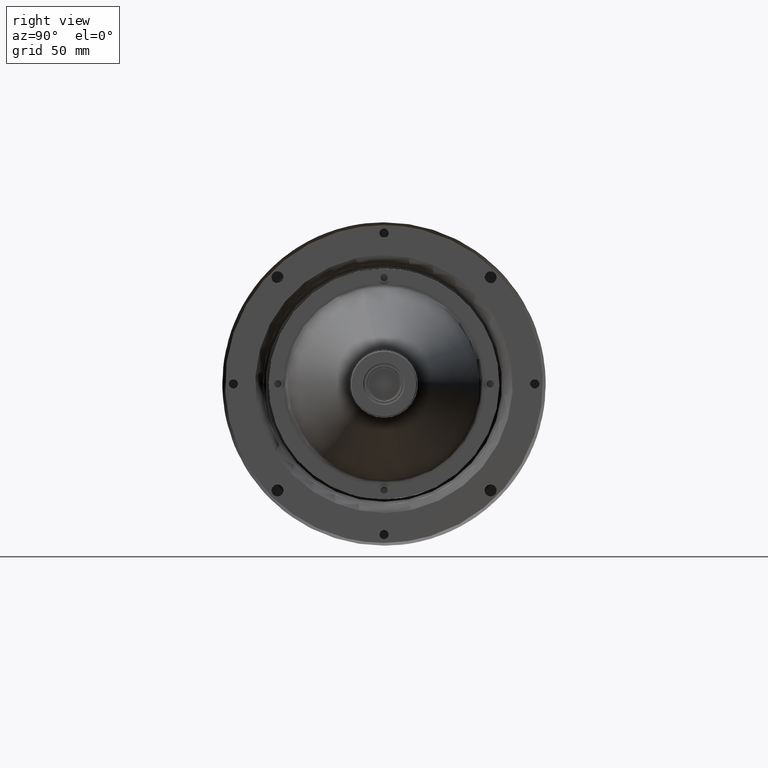
[diagram: clean part render]
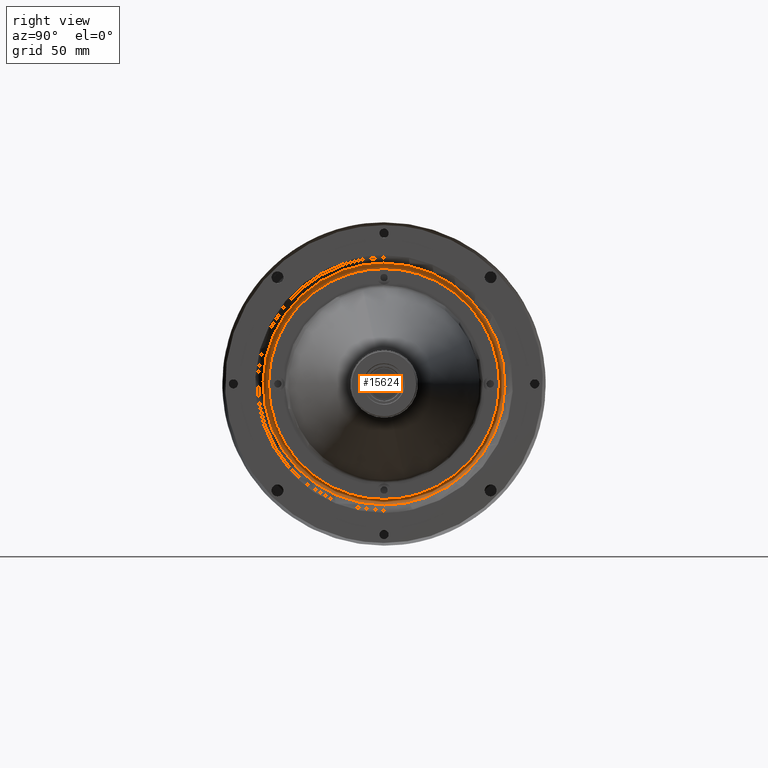
[diagram: same view with one face highlighted and labeled with its STEP entity id]
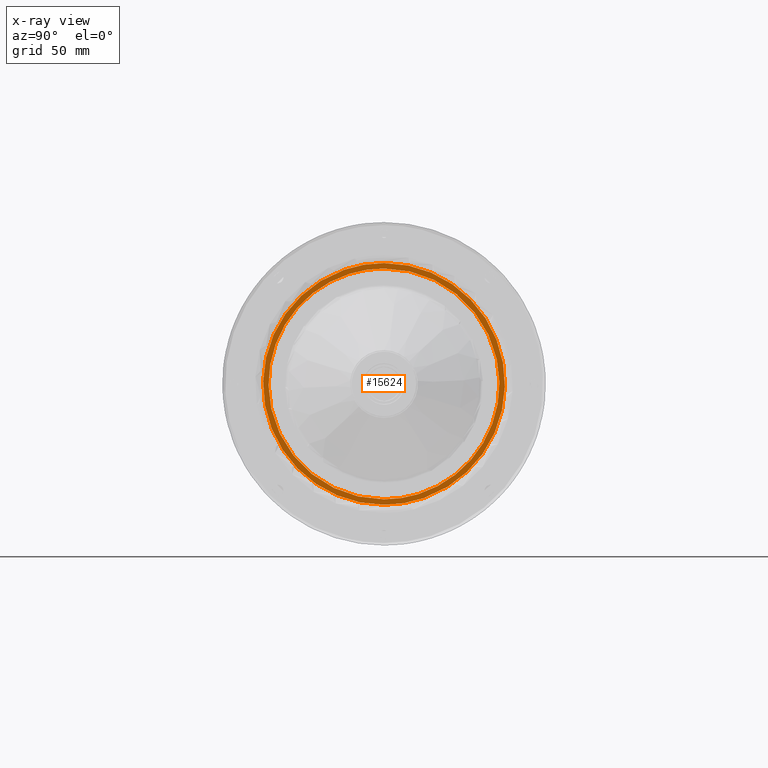
[diagram: x-ray of the same camera — body ghosted, the highlighted face saturated]
A machine part, right view. The second image highlights one B-rep face of the part: STEP entity #15624.
The next image is the same camera in x-ray: the body ghosted, the highlighted face saturated — about 0% of this face is hidden behind the body in this view.
In plain terms, the highlighted planar face has unit normal (1, 0, 0).
Its self-contained STEP definition (entity closure, byte-faithful):
#52 = CARTESIAN_POINT ( 'NONE',  ( 161.0389117160000296, -60.98239252534106924, -84.57051480034246538 ) ) ;
#238 = CARTESIAN_POINT ( 'NONE',  ( 161.0389117160000296, -51.80303036488530211, -104.0800218913116453 ) ) ;
#330 = CARTESIAN_POINT ( 'NONE',  ( 161.0389117160000296, -35.42952243443664173, -16.12697816330168621 ) ) ;
#408 = CARTESIAN_POINT ( 'NONE',  ( 161.0389117160000296, 66.84382141800000454, -68.22315387150000277 ) ) ;
#454 = CARTESIAN_POINT ( 'NONE',  ( 161.0389117160000580, -65.99996388334150765, -63.88916545783057899 ) ) ;
#508 = CARTESIAN_POINT ( 'NONE',  ( 161.0389117160000296, -52.95017771342435253, -34.08307390523878411 ) ) ;
#598 = CARTESIAN_POINT ( 'NONE',  ( 161.0389117160000296, -14.31058401001184777, -6.867920689104522580 ) ) ;
#823 = CARTESIAN_POINT ( 'NONE',  ( 161.0389117161174966, 8.637371628181590292E-15, -134.2231538719059927 ) ) ;
#927 = VERTEX_POINT ( 'NONE', #7007 ) ;
#962 = ORIENTED_EDGE ( 'NONE', *, *, #16821, .T. ) ;
#1058 = CARTESIAN_POINT ( 'NONE',  ( 161.0389117160000296, 4.117028644093690737, -5.354947150696134806 ) ) ;
#1087 = CARTESIAN_POINT ( 'NONE',  ( 161.0389117160000580, 53.50155055510528967, -101.4925453806690427 ) ) ;
#1152 = CARTESIAN_POINT ( 'NONE',  ( 161.0389117160000012, 46.01000154932732045, -25.13777346086834896 ) ) ;
#1180 = CARTESIAN_POINT ( 'NONE',  ( 161.0389117160000296, 14.31058400981928003, -129.5783870539603413 ) ) ;
#1204 = B_SPLINE_CURVE_WITH_KNOTS ( 'NONE', 3,
 ( #2042, #11738, #6241, #7368, #8848, #3257, #17417, #8760, #1772, #7721, #10252, #8938, #1952, #13233, #13414, #10510, #5974, #454, #4662, #12008, #11647, #4933, #17328, #4577, #6152, #10336, #15924, #16280, #3347, #3172, #9024, #7454, #14721, #13142 ),
 .UNSPECIFIED., .F., .F.,
 ( 4, 2, 2, 2, 2, 2, 2, 2, 2, 2, 2, 2, 2, 2, 2, 2, 4 ),
 ( 0.000000000000000000, 0.06250000000000001388, 0.1250000000000000000, 0.1874999999999999722, 0.2499999999999999722, 0.3124999999999999445, 0.3749999999999999445, 0.4375000000000000000, 0.5000000000000000000, 0.5625000000000000000, 0.6250000000000000000, 0.6875000000000000000, 0.7500000000000000000, 0.8125000000000001110, 0.8750000000000001110, 0.9375000000000001110, 1.000000000000000000 ),
 .UNSPECIFIED. ) ;
#1248 = CARTESIAN_POINT ( 'NONE',  ( 161.0389117160000296, 31.95354988486137771, -13.91080835874686983 ) ) ;
#1266 = CARTESIAN_POINT ( 'NONE',  ( 161.0389117160000296, -38.44023301246599544, -118.3076050973635489 ) ) ;
#1361 = CARTESIAN_POINT ( 'NONE',  ( 161.0389117160000296, -5.146124663726901360, -131.0153652367820882 ) ) ;
#1369 = CARTESIAN_POINT ( 'NONE',  ( 161.0389117160000296, 40.79528611295974372, -116.3092851228584834 ) ) ;
#1454 = CARTESIAN_POINT ( 'NONE',  ( 161.0389117160000296, -56.04735366171711775, -97.01121313402066448 ) ) ;
#1461 = CARTESIAN_POINT ( 'NONE',  ( 161.0389117160000296, 60.63520505313289277, -85.54072083987173869 ) ) ;
#1551 = CARTESIAN_POINT ( 'NONE',  ( 161.0389117160000580, -58.40167514031017504, -44.59047963869099362 ) ) ;
#1649 = CARTESIAN_POINT ( 'NONE',  ( 161.0389117160000296, -58.96559584998212955, -46.03438386248579661 ) ) ;
#1738 = CARTESIAN_POINT ( 'NONE',  ( 161.0389117160000296, -35.85686119820013573, -16.42011475253995556 ) ) ;
#1772 = CARTESIAN_POINT ( 'NONE',  ( 161.0389117160000296, -43.60450174787632704, -117.9567936733250093 ) ) ;
#1829 = CARTESIAN_POINT ( 'NONE',  ( 161.0389117160000296, -12.79677830549330864, -6.534640802266791226 ) ) ;
#1952 = CARTESIAN_POINT ( 'NONE',  ( 161.0389117160000296, -59.31753695109321711, -97.48435741853538161 ) ) ;
#1969 = ORIENTED_EDGE ( 'NONE', *, *, #10152, .F. ) ;
#2042 = CARTESIAN_POINT ( 'NONE',  ( 161.0389117161174966, 8.637371628181590292E-15, -134.2231538719059927 ) ) ;
#2047 = CARTESIAN_POINT ( 'NONE',  ( 161.0389117160000296, 21.25304157746991862, -130.8577054897409653 ) ) ;
#2102 = CARTESIAN_POINT ( 'NONE',  ( 161.0389117160000296, 0.000000000000000000, -5.223153871631780021 ) ) ;
#2230 = CARTESIAN_POINT ( 'NONE',  ( 161.0389117159999728, 40.27116908895199288, -15.75400319360399948 ) ) ;
#2468 = CARTESIAN_POINT ( 'NONE',  ( 161.0389117160000296, 51.20881227910294342, -31.52241119441567108 ) ) ;
#2559 = CARTESIAN_POINT ( 'NONE',  ( 161.0389117160000296, 22.18922346975865878, -9.257697618724758826 ) ) ;
#2671 = CARTESIAN_POINT ( 'NONE',  ( 161.0389117160000296, -17.31849492640142074, -128.8579819026951725 ) ) ;
#2678 = CARTESIAN_POINT ( 'NONE',  ( 161.0389117160000296, 6.689558338009458538, -130.8694854632589681 ) ) ;
#2743 = CARTESIAN_POINT ( 'NONE',  ( 161.0389117160000296, 63.00003590390296182, -72.35952502023621946 ) ) ;
#2764 = CARTESIAN_POINT ( 'NONE',  ( 161.0389117160000296, -56.74255675229115070, -95.63017132770922046 ) ) ;
#2772 = CARTESIAN_POINT ( 'NONE',  ( 161.0389117160000296, 37.95445731583696869, -118.5259865618847215 ) ) ;
#2859 = CARTESIAN_POINT ( 'NONE',  ( 161.0389117160000580, -62.99996409550111309, -72.35952501991584995 ) ) ;
#2869 = CARTESIAN_POINT ( 'NONE',  ( 161.0389117160000296, 62.59636127161986963, -76.45715092787369827 ) ) ;
#2952 = CARTESIAN_POINT ( 'NONE',  ( 161.0389117160000296, -59.50467886748198509, -47.48420558772223643 ) ) ;
#3035 = FACE_OUTER_BOUND ( 'NONE', #8152, .T. ) ;
#3048 = CARTESIAN_POINT ( 'NONE',  ( 161.0389117160000012, -52.09616399811719845, -103.6526886868224011 ) ) ;
#3138 = CARTESIAN_POINT ( 'NONE',  ( 161.0389117160000296, -27.86734328266357608, -11.71233382770468445 ) ) ;
#3172 = CARTESIAN_POINT ( 'NONE',  ( 161.0389117160000012, -21.25300952490135487, -5.588592531348005821 ) ) ;
#3223 = CARTESIAN_POINT ( 'NONE',  ( 161.0389117160000580, -53.50155055528251324, -34.95376236261831338 ) ) ;
#3257 = CARTESIAN_POINT ( 'NONE',  ( 161.0389117160000012, -29.26114636558689241, -127.5406398775946428 ) ) ;
#3313 = CARTESIAN_POINT ( 'NONE',  ( 161.0389117160000296, -11.27838136486966114, -6.232574490354038765 ) ) ;
#3347 = CARTESIAN_POINT ( 'NONE',  ( 161.0389117160000296, -29.26120354723122219, -8.905616920936404668 ) ) ;
#3442 = CARTESIAN_POINT ( 'NONE',  ( 161.0389117160000296, 29.26117149471078349, -127.5407005453527916 ) ) ;
#3726 = CARTESIAN_POINT ( 'NONE',  ( 161.0389117160000012, 63.88628361223909735, -85.34978806856874201 ) ) ;
#3868 = CARTESIAN_POINT ( 'NONE',  ( 161.0389117160000296, 14.31953092777910896, -6.837537078507872401 ) ) ;
#3898 = CARTESIAN_POINT ( 'NONE',  ( 161.0389117160000296, 8.223252223538016992, -130.6864482731011492 ) ) ;
#4055 = CARTESIAN_POINT ( 'NONE',  ( 161.0389117160000580, 57.38622727865502071, -42.22145965940867285 ) ) ;
#4082 = CARTESIAN_POINT ( 'NONE',  ( 161.0389117160000296, 7.200510305561976132, -130.8127300409256577 ) ) ;
#4147 = CARTESIAN_POINT ( 'NONE',  ( 161.0389117160000296, 8.223583323597393857, -5.753521022522209094 ) ) ;
#4263 = CARTESIAN_POINT ( 'NONE',  ( 161.0389117160000580, -62.59643541217737805, -76.45714591660612314 ) ) ;
#4359 = CARTESIAN_POINT ( 'NONE',  ( 161.0389117160000296, -61.38594031726498912, -53.90413766900750403 ) ) ;
#4452 = CARTESIAN_POINT ( 'NONE',  ( 161.0389117160000012, -20.73965030033334855, -127.7275920955544279 ) ) ;
#4577 = CARTESIAN_POINT ( 'NONE',  ( 161.0389117160000296, -52.46912942916018352, -27.95195889178084059 ) ) ;
#4662 = CARTESIAN_POINT ( 'NONE',  ( 161.0389117160000296, -65.57738312438897310, -59.59789761455478185 ) ) ;
#4718 = CARTESIAN_POINT ( 'NONE',  ( 161.0389117160000296, -40.79528611323765119, -20.13702262035069879 ) ) ;
#4848 = CARTESIAN_POINT ( 'NONE',  ( 161.0389117160000296, 40.27120557181505944, -120.6923591488661032 ) ) ;
#4900 = CARTESIAN_POINT ( 'NONE',  ( 161.0389117160000012, -43.08536593770156742, -22.21313846723916541 ) ) ;
#4933 = CARTESIAN_POINT ( 'NONE',  ( 161.0389117160000580, -59.31747021626298988, -38.96197796721411777 ) ) ;
#4937 = CARTESIAN_POINT ( 'NONE',  ( 161.0389117160000296, 66.00003283299430734, -63.88919879122316559 ) ) ;
#4985 = CARTESIAN_POINT ( 'NONE',  ( 161.0389117160000296, -19.28884145850024368, -8.185978338492898132 ) ) ;
#5120 = CARTESIAN_POINT ( 'NONE',  ( 161.0389117160000296, 8.625288309192741920, -2.645780470786863514 ) ) ;
#5207 = CARTESIAN_POINT ( 'NONE',  ( 161.0389117160785020, 4.041334437185214648E-15, -2.223153871939699933 ) ) ;
#5290 = CARTESIAN_POINT ( 'NONE',  ( 161.0389117160000296, 0.000000000000000000, -131.2231538713679981 ) ) ;
#5383 = CARTESIAN_POINT ( 'NONE',  ( 161.0389117160000296, 58.40167514031064400, -91.85582810429200151 ) ) ;
#5450 = CARTESIAN_POINT ( 'NONE',  ( 161.0389117160000580, 20.73965030060878334, -8.718715647435026028 ) ) ;
#5542 = CARTESIAN_POINT ( 'NONE',  ( 161.0389117160000296, 62.59643541228213337, -59.98916182675870346 ) ) ;
#5561 = CARTESIAN_POINT ( 'NONE',  ( 161.0389117160000296, 0.000000000000000000, -131.2231538713679981 ) ) ;
#5569 = CARTESIAN_POINT ( 'NONE',  ( 161.0389117160000296, 13.30340412801762540, -129.8044546036706208 ) ) ;
#5662 = CARTESIAN_POINT ( 'NONE',  ( 161.0389117160000296, 19.28884145810087958, -128.2603294046413396 ) ) ;
#5756 = CARTESIAN_POINT ( 'NONE',  ( 161.0389117160000580, -27.87770803636277250, -124.7570605306330407 ) ) ;
#5849 = CARTESIAN_POINT ( 'NONE',  ( 161.0389117160000296, -5.662212559952839008, -130.9708359649554836 ) ) ;
#5939 = CARTESIAN_POINT ( 'NONE',  ( 161.0389117160000296, -55.07452444200596631, -37.61509197332671306 ) ) ;
#5974 = CARTESIAN_POINT ( 'NONE',  ( 161.0389117160000296, -66.00003611648766366, -72.55714228583603642 ) ) ;
#6031 = CARTESIAN_POINT ( 'NONE',  ( 161.0389117160000296, -26.00437275133747761, -10.83118868537321511 ) ) ;
#6152 = CARTESIAN_POINT ( 'NONE',  ( 161.0389117160000296, -49.73366569340016952, -24.61867337225667285 ) ) ;
#6241 = CARTESIAN_POINT ( 'NONE',  ( 161.0389117160000296, -8.625288308835219908, -133.8005272729292301 ) ) ;
#6245 = CARTESIAN_POINT ( 'NONE',  ( 161.0389117160000296, 4.333790024860001644, -2.223153871879407717 ) ) ;
#6299 = CARTESIAN_POINT ( 'NONE',  ( 161.0389117160000296, -9.754745778685798285, -5.968056065147904654 ) ) ;
#6340 = CARTESIAN_POINT ( 'NONE',  ( 161.0389117160000296, 57.28478354647121051, -35.15908868439235135 ) ) ;
#6443 = EDGE_CURVE ( 'NONE', #15229, #18436, #1204, .T. ) ;
#6520 = CARTESIAN_POINT ( 'NONE',  ( 161.0389117160000296, 17.12663419692927036, -4.336870259730345012 ) ) ;
#6664 = CARTESIAN_POINT ( 'NONE',  ( 161.0389117160000296, 0.000000000000000000, -5.223153871631780021 ) ) ;
#6754 = CARTESIAN_POINT ( 'NONE',  ( 161.0389117160000296, 54.58823739487295512, -36.70538624668693473 ) ) ;
#6780 = CARTESIAN_POINT ( 'NONE',  ( 161.0389117160000012, 15.81577557825788993, -129.2211192873852212 ) ) ;
#6843 = CARTESIAN_POINT ( 'NONE',  ( 161.0389117160000296, 26.01449810599160273, -10.80797410920003188 ) ) ;
#6846 = B_SPLINE_CURVE_WITH_KNOTS ( 'NONE', 3,
 ( #6664, #8332, #13835, #1058, #15406, #18023, #7033, #4147, #10936, #9632, #3868, #15317, #5450, #2559, #14022, #16616, #6843, #16899, #11034, #1248, #8237, #15227, #6940, #12617, #9820, #1152, #9543, #12526, #2468, #8150, #16804, #8425, #6754, #12433, #18111, #4055, #13925, #11225, #18295, #9725, #5542, #15506, #2743, #2869, #8263, #1461, #18140, #15531, #13861, #5383, #18234, #9847, #9570, #8544, #1087, #10962, #8177, #6872, #11064, #12646, #1369, #2772, #14233, #12735, #9660, #8451, #16645, #12458, #12553, #15343, #12370, #16743, #5662, #6780, #1180, #5569, #16832, #18410, #14138, #3898, #4082, #2678, #18050, #7061, #5290 ),
 .UNSPECIFIED., .F., .F.,
 ( 4, 1, 2, 2, 2, 2, 1, 1, 2, 2, 2, 1, 2, 2, 2, 1, 1, 2, 2, 2, 1, 2, 2, 2, 2, 2, 1, 1, 2, 2, 2, 1, 2, 2, 2, 1, 1, 2, 2, 2, 2, 2, 1, 1, 2, 2, 1, 2, 2, 4 ),
 ( -1.000000000000000000, -0.9843750000000000000, -0.9765625000000000000, -0.9687500000000001110, -0.9531250000000001110, -0.9375000000000001110, -0.9062500000000002220, -0.8906250000000003331, -0.8828125000000003331, -0.8750000000000003331, -0.8437500000000005551, -0.8281250000000006661, -0.8203125000000007772, -0.8125000000000008882, -0.7500000000000011102, -0.7187500000000011102, -0.7031250000000013323, -0.6953125000000013323, -0.6875000000000013323, -0.6562500000000016653, -0.6406250000000017764, -0.6328125000000018874, -0.6250000000000019984, -0.5625000000000023315, -0.5000000000000027756, -0.4375000000000031086, -0.4062500000000034417, -0.3906250000000035527, -0.3828125000000035527, -0.3750000000000035527, -0.3437500000000037748, -0.3281250000000038858, -0.3203125000000039968, -0.3125000000000039968, -0.2500000000000036637, -0.2187500000000034417, -0.2031250000000033307, -0.1953125000000032196, -0.1875000000000031086, -0.1562500000000026645, -0.1406250000000024425, -0.1250000000000022204, -0.09375000000000177636, -0.07812500000000144329, -0.07031250000000133227, -0.06250000000000111022, -0.04687500000000077716, -0.03906250000000066613, -0.03125000000000055511, -0.000000000000000000 ),
 .UNSPECIFIED. ) ;
#6872 = CARTESIAN_POINT ( 'NONE',  ( 161.0389117160000580, 50.08442155482666180, -106.6634169090445283 ) ) ;
#6940 = CARTESIAN_POINT ( 'NONE',  ( 161.0389117160000580, 34.57100120562761703, -15.55330966595210818 ) ) ;
#7007 = CARTESIAN_POINT ( 'NONE',  ( 161.0389117160000296, 0.000000000000000000, -5.223153871631780021 ) ) ;
#7033 = CARTESIAN_POINT ( 'NONE',  ( 161.0389117160000012, 7.201022074780442317, -5.627266076780837345 ) ) ;
#7052 = CARTESIAN_POINT ( 'NONE',  ( 161.0389117160000012, -8.223583323959729796, -130.6927867204431379 ) ) ;
#7061 = CARTESIAN_POINT ( 'NONE',  ( 161.0389117160000296, 2.059128951183063272, -131.2242194758088374 ) ) ;
#7147 = CARTESIAN_POINT ( 'NONE',  ( 161.0389117160000296, -58.00651539421441782, -92.80988966192411738 ) ) ;
#7244 = CARTESIAN_POINT ( 'NONE',  ( 161.0389117160000296, -46.01000154927311314, -111.3085342822122499 ) ) ;
#7336 = CARTESIAN_POINT ( 'NONE',  ( 161.0389117160000580, -57.41516825762534637, -42.20862918298812616 ) ) ;
#7368 = CARTESIAN_POINT ( 'NONE',  ( 161.0389117160000296, -17.12663419726456127, -132.1094374838600061 ) ) ;
#7454 = CARTESIAN_POINT ( 'NONE',  ( 161.0389117160000012, -8.625423712453637037, -2.645877703010270920 ) ) ;
#7597 = CARTESIAN_POINT ( 'NONE',  ( 161.0389117160000012, -47.47230387007598296, -26.60015155030127687 ) ) ;
#7721 = CARTESIAN_POINT ( 'NONE',  ( 161.0389117160000012, -49.73359336863203595, -111.8276091868730049 ) ) ;
#7725 = CARTESIAN_POINT ( 'NONE',  ( 161.0389117160000296, 8.625440542801813493, -133.8004300406608422 ) ) ;
#7821 = CARTESIAN_POINT ( 'NONE',  ( 161.0389117160000296, 65.57737340097341416, -76.84844218121831716 ) ) ;
#8150 = CARTESIAN_POINT ( 'NONE',  ( 161.0389117160000296, 51.80303036491064717, -32.36628585172623929 ) ) ;
#8152 = EDGE_LOOP ( 'NONE', ( #962, #16463 ) ) ;
#8155 = CARTESIAN_POINT ( 'NONE',  ( 161.0389117160000296, 0.000000000000000000, -131.2231538713679981 ) ) ;
#8177 = CARTESIAN_POINT ( 'NONE',  ( 161.0389117160000012, 52.66984524241706112, -102.7941510147248181 ) ) ;
#8237 = CARTESIAN_POINT ( 'NONE',  ( 161.0389117160000296, 33.26942636357355809, -14.72162843541306820 ) ) ;
#8263 = CARTESIAN_POINT ( 'NONE',  ( 161.0389117160000580, 61.38594031732888823, -82.54217007377459936 ) ) ;
#8332 = CARTESIAN_POINT ( 'NONE',  ( 161.0389117160000296, 1.029382493212165794, -5.222621163587906068 ) ) ;
#8353 = CARTESIAN_POINT ( 'NONE',  ( 161.0389117160000296, -14.31953092756928925, -129.6087706644843252 ) ) ;
#8425 = CARTESIAN_POINT ( 'NONE',  ( 161.0389117160000865, 53.52822372640637383, -34.93671525299895109 ) ) ;
#8451 = CARTESIAN_POINT ( 'NONE',  ( 161.0389117160000296, 33.28648951652249366, -121.7513426331773871 ) ) ;
#8544 = CARTESIAN_POINT ( 'NONE',  ( 161.0389117159999728, 54.31238089007405279, -100.1766598469640002 ) ) ;
#8629 = CARTESIAN_POINT ( 'NONE',  ( 161.0389117160000580, -58.59408010606535555, -45.07149927957957658 ) ) ;
#8714 = DIRECTION ( 'NONE',  ( 1.000000000000000000, 0.000000000000000000, 0.000000000000000000 ) ) ;
#8726 = CARTESIAN_POINT ( 'NONE',  ( 161.0389117160000580, -53.52822372651107941, -101.5095924898454172 ) ) ;
#8760 = CARTESIAN_POINT ( 'NONE',  ( 161.0389117160000296, -40.27116908882653235, -120.6923045501140876 ) ) ;
#8817 = CARTESIAN_POINT ( 'NONE',  ( 161.0389117160000296, -6.689558337857972603, -5.576822279741184829 ) ) ;
#8848 = CARTESIAN_POINT ( 'NONE',  ( 161.0389117160000296, -21.25306670654568109, -130.8577661574541366 ) ) ;
#8902 = CARTESIAN_POINT ( 'NONE',  ( 161.0389117160000580, -25.06416454413070838, -10.41437285305175386 ) ) ;
#8938 = CARTESIAN_POINT ( 'NONE',  ( 161.0389117160000296, -57.28479289476687342, -101.2872050683045302 ) ) ;
#9024 = CARTESIAN_POINT ( 'NONE',  ( 161.0389117160000296, -17.12649879364615657, -4.336773027533723734 ) ) ;
#9120 = CARTESIAN_POINT ( 'NONE',  ( 161.0389117160000296, 62.63455161807367233, -46.97011229441832114 ) ) ;
#9307 = CARTESIAN_POINT ( 'NONE',  ( 161.0389117160000296, 65.99996716699186550, -72.55710895244338587 ) ) ;
#9396 = CARTESIAN_POINT ( 'NONE',  ( 161.0389117160000296, 63.88634801639764049, -51.09650686406585862 ) ) ;
#9543 = CARTESIAN_POINT ( 'NONE',  ( 161.0389117160000296, 48.08610594519923609, -27.42784170207221095 ) ) ;
#9570 = CARTESIAN_POINT ( 'NONE',  ( 161.0389117160000012, 55.07452444187722307, -98.83121576988216361 ) ) ;
#9632 = CARTESIAN_POINT ( 'NONE',  ( 161.0389117160000580, 11.27620352403860871, -6.232159508189875297 ) ) ;
#9660 = CARTESIAN_POINT ( 'NONE',  ( 161.0389117160000296, 35.42952243444889149, -120.3193295796931466 ) ) ;
#9725 = CARTESIAN_POINT ( 'NONE',  ( 161.0389117160000296, 60.98239252523627130, -51.87579294229268356 ) ) ;
#9820 = CARTESIAN_POINT ( 'NONE',  ( 161.0389117160000012, 41.62303264682455506, -20.75088156304291331 ) ) ;
#9840 = CARTESIAN_POINT ( 'NONE',  ( 161.0389117160000012, -7.201022075021990432, -130.8190416661960569 ) ) ;
#9847 = CARTESIAN_POINT ( 'NONE',  ( 161.0389117159999728, 56.53389583459607337, -96.10091622454936555 ) ) ;
#9850 = CARTESIAN_POINT ( 'NONE',  ( 161.0389117161174966, 8.637371628181590292E-15, -134.2231538719059927 ) ) ;
#10030 = CARTESIAN_POINT ( 'NONE',  ( 161.0389117160000012, -23.15190863203087446, -126.8171712107893399 ) ) ;
#10126 = CARTESIAN_POINT ( 'NONE',  ( 161.0389117160000296, -33.26942636335878234, -121.7246793077154052 ) ) ;
#10152 = EDGE_CURVE ( 'NONE', #14614, #927, #15563, .T. ) ;
#10210 = PLANE ( 'NONE',  #16661 ) ;
#10221 = CARTESIAN_POINT ( 'NONE',  ( 161.0389117160000296, -4.117028644086341060, -131.0913605923038006 ) ) ;
#10252 = CARTESIAN_POINT ( 'NONE',  ( 161.0389117160000296, -52.46919592903032026, -108.4943734338739034 ) ) ;
#10304 = CARTESIAN_POINT ( 'NONE',  ( 161.0389117160000296, -2.059128951788950168, -5.222088267191005606 ) ) ;
#10336 = CARTESIAN_POINT ( 'NONE',  ( 161.0389117160000296, -43.60442942310820058, -18.48953925487853311 ) ) ;
#10510 = CARTESIAN_POINT ( 'NONE',  ( 161.0389117160000580, -65.57731227924834627, -76.84839603740466885 ) ) ;
#10611 = CARTESIAN_POINT ( 'NONE',  ( 161.0389117160000296, 17.12648196332020589, -132.1095347161552240 ) ) ;
#10702 = CARTESIAN_POINT ( 'NONE',  ( 161.0389117160000580, 52.46920527745020735, -27.95194830071356762 ) ) ;
#10936 = CARTESIAN_POINT ( 'NONE',  ( 161.0389117160000296, 10.26208229925612514, -6.056148407188247873 ) ) ;
#10962 = CARTESIAN_POINT ( 'NONE',  ( 161.0389117160000296, 52.95017771331151835, -102.3632338379441364 ) ) ;
#11034 = CARTESIAN_POINT ( 'NONE',  ( 161.0389117160000296, 30.60808592630125702, -13.14865730133420207 ) ) ;
#11064 = CARTESIAN_POINT ( 'NONE',  ( 161.0389117160000296, 47.47230387039358135, -109.8461561924600289 ) ) ;
#11225 = CARTESIAN_POINT ( 'NONE',  ( 161.0389117160000296, 58.00651539421609471, -43.63641808106400788 ) ) ;
#11243 = CARTESIAN_POINT ( 'NONE',  ( 161.0389117160000296, -26.01449810504277593, -125.6383336342870365 ) ) ;
#11337 = CARTESIAN_POINT ( 'NONE',  ( 161.0389117160000296, -22.18922346958154890, -127.1886101242683509 ) ) ;
#11433 = CARTESIAN_POINT ( 'NONE',  ( 161.0389117160000012, -48.08610594510435732, -109.0184660410686206 ) ) ;
#11525 = CARTESIAN_POINT ( 'NONE',  ( 161.0389117160000296, -11.27620352414349192, -130.2141482348143313 ) ) ;
#11617 = CARTESIAN_POINT ( 'NONE',  ( 161.0389117160000580, -34.57100120566328627, -120.8929980770183334 ) ) ;
#11647 = CARTESIAN_POINT ( 'NONE',  ( 161.0389117160000296, -62.63462807507094965, -46.97011670431398755 ) ) ;
#11705 = CARTESIAN_POINT ( 'NONE',  ( 161.0389117160000865, -28.78804393129150085, -12.17580916606376817 ) ) ;
#11738 = CARTESIAN_POINT ( 'NONE',  ( 161.0389117160000296, -4.333790024777719907, -134.2231538717872183 ) ) ;
#11781 = FACE_BOUND ( 'NONE', #16391, .T. ) ;
#11876 = CARTESIAN_POINT ( 'NONE',  ( 161.0389117160000296, -54.31238089029953642, -36.26964789640158671 ) ) ;
#11918 = CARTESIAN_POINT ( 'NONE',  ( 161.0389117160000296, 49.73363980180317867, -111.8276556194465883 ) ) ;
#12008 = CARTESIAN_POINT ( 'NONE',  ( 161.0389117160000580, -63.88627388867060120, -51.09648762301052471 ) ) ;
#12063 = CARTESIAN_POINT ( 'NONE',  ( 161.0389117160000296, -7.200510305958824908, -5.633577702139736409 ) ) ;
#12106 = CARTESIAN_POINT ( 'NONE',  ( 161.0389117160000296, 49.73359336888274385, -24.61869855696600595 ) ) ;
#12196 = CARTESIAN_POINT ( 'NONE',  ( 161.0389117160000296, 62.63461228551428661, -89.47622057862476197 ) ) ;
#12232 = B_SPLINE_CURVE_WITH_KNOTS ( 'NONE', 3,
 ( #5207, #6245, #5120, #6520, #16105, #16470, #13418, #2230, #13691, #12106, #10702, #6340, #14726, #9120, #9396, #17600, #4937, #9307, #7821, #3726, #12196, #17786, #13329, #16380, #11918, #15088, #4848, #13601, #3442, #2047, #10611, #7725, #16286, #823 ),
 .UNSPECIFIED., .F., .F.,
 ( 4, 2, 2, 2, 2, 2, 2, 2, 2, 2, 2, 2, 2, 2, 2, 2, 4 ),
 ( 0.000000000000000000, 0.06250000000000002776, 0.1250000000000000278, 0.1875000000000000278, 0.2500000000000000000, 0.3125000000000000000, 0.3750000000000000555, 0.4375000000000000555, 0.5000000000000001110, 0.5625000000000001110, 0.6250000000000001110, 0.6875000000000002220, 0.7500000000000002220, 0.8125000000000002220, 0.8750000000000001110, 0.9375000000000001110, 1.000000000000000000 ),
 .UNSPECIFIED. ) ;
#12370 = CARTESIAN_POINT ( 'NONE',  ( 161.0389117160000296, 25.06416454424494589, -126.0319348899096639 ) ) ;
#12433 = CARTESIAN_POINT ( 'NONE',  ( 161.0389117160000296, 56.04735366173878930, -39.43509460899970520 ) ) ;
#12458 = CARTESIAN_POINT ( 'NONE',  ( 161.0389117160000296, 28.78804393124970673, -124.2704985769624813 ) ) ;
#12526 = CARTESIAN_POINT ( 'NONE',  ( 161.0389117160000865, 50.30281264346896108, -30.26867699498622954 ) ) ;
#12553 = CARTESIAN_POINT ( 'NONE',  ( 161.0389117160000296, 27.86734328260085647, -124.7339739153345022 ) ) ;
#12617 = CARTESIAN_POINT ( 'NONE',  ( 161.0389117160000012, 38.44023301275158389, -18.13870264586954661 ) ) ;
#12638 = CARTESIAN_POINT ( 'NONE',  ( 161.0389117160000296, -30.60808592614506551, -123.2976504417595294 ) ) ;
#12646 = CARTESIAN_POINT ( 'NONE',  ( 161.0389117160000580, 43.08536593754282507, -114.2331692758805133 ) ) ;
#12728 = CARTESIAN_POINT ( 'NONE',  ( 161.0389117160000296, -57.80388928190590292, -93.28257004583089440 ) ) ;
#12735 = CARTESIAN_POINT ( 'NONE',  ( 161.0389117160000012, 35.85686119812570638, -120.0261929905157672 ) ) ;
#12828 = CARTESIAN_POINT ( 'NONE',  ( 161.0389117160000296, -63.00003590400772424, -64.08678272308414137 ) ) ;
#12928 = CARTESIAN_POINT ( 'NONE',  ( 161.0389117160000296, -41.62303264693291283, -115.6954261797965557 ) ) ;
#13020 = CARTESIAN_POINT ( 'NONE',  ( 161.0389117160000580, -56.53389583433818188, -40.34539151803287638 ) ) ;
#13111 = CARTESIAN_POINT ( 'NONE',  ( 161.0389117160000296, -8.223252224161660351, -5.759859470001682524 ) ) ;
#13142 = CARTESIAN_POINT ( 'NONE',  ( 161.0389117160785020, 4.041334437185214648E-15, -2.223153871939699933 ) ) ;
#13197 = CARTESIAN_POINT ( 'NONE',  ( 161.0389117160000296, -22.19881601845655794, -9.227509827761904759 ) ) ;
#13233 = CARTESIAN_POINT ( 'NONE',  ( 161.0389117160000296, -62.63456134024071531, -89.47616339726968704 ) ) ;
#13289 = CARTESIAN_POINT ( 'NONE',  ( 161.0389117160000580, -31.51779202606991959, -13.63494348272108070 ) ) ;
#13329 = CARTESIAN_POINT ( 'NONE',  ( 161.0389117160000296, 57.28483814553907649, -101.2872555416214908 ) ) ;
#13379 = CARTESIAN_POINT ( 'NONE',  ( 161.0389117160000296, -50.08442155511374949, -29.78289083432135698 ) ) ;
#13414 = CARTESIAN_POINT ( 'NONE',  ( 161.0389117160000296, -63.88634473381125645, -85.34983421236329093 ) ) ;
#13418 = CARTESIAN_POINT ( 'NONE',  ( 161.0389117160000580, 33.06410166962182018, -10.93831572617601999 ) ) ;
#13570 = EDGE_CURVE ( 'NONE', #927, #14614, #6846, .T. ) ;
#13601 = CARTESIAN_POINT ( 'NONE',  ( 161.0389117160000012, 33.06406518675884598, -125.5079374186871206 ) ) ;
#13691 = CARTESIAN_POINT ( 'NONE',  ( 161.0389117160000296, 43.60450174772695675, -18.48951407011381320 ) ) ;
#13835 = CARTESIAN_POINT ( 'NONE',  ( 161.0389117160000012, 2.573312996243288353, -5.260086133304890943 ) ) ;
#13861 = CARTESIAN_POINT ( 'NONE',  ( 161.0389117160000580, 58.59408010609525519, -91.37480846331834528 ) ) ;
#13925 = CARTESIAN_POINT ( 'NONE',  ( 161.0389117160000012, 57.80388928192478915, -43.16373769718694575 ) ) ;
#14022 = CARTESIAN_POINT ( 'NONE',  ( 161.0389117160000012, 23.15190863212931660, -9.629136532206665322 ) ) ;
#14131 = CARTESIAN_POINT ( 'NONE',  ( 161.0389117160000012, -1.029382493206827176, -131.2236865794119183 ) ) ;
#14138 = CARTESIAN_POINT ( 'NONE',  ( 161.0389117160000296, 9.754745777892074088, -130.4782516779828541 ) ) ;
#14225 = CARTESIAN_POINT ( 'NONE',  ( 161.0389117160000012, -10.26208229961846818, -130.3901593357770992 ) ) ;
#14233 = CARTESIAN_POINT ( 'NONE',  ( 161.0389117160000296, 36.70073018811810073, -119.4319799537999387 ) ) ;
#14319 = CARTESIAN_POINT ( 'NONE',  ( 161.0389117160000296, -34.14010235372324331, -121.1733172522792046 ) ) ;
#14417 = CARTESIAN_POINT ( 'NONE',  ( 161.0389117160000296, -62.59636127174762521, -59.98915681556211155 ) ) ;
#14511 = CARTESIAN_POINT ( 'NONE',  ( 161.0389117160000296, -52.66984524238126397, -33.65215672822969140 ) ) ;
#14596 = CARTESIAN_POINT ( 'NONE',  ( 161.0389117160000296, -15.81577557855743166, -7.225188455715561453 ) ) ;
#14614 = VERTEX_POINT ( 'NONE', #8155 ) ;
#14721 = CARTESIAN_POINT ( 'NONE',  ( 161.0389117160000296, -4.333436628103657817, -2.223153871879406829 ) ) ;
#14726 = CARTESIAN_POINT ( 'NONE',  ( 161.0389117160000296, 59.31754667340189258, -38.96198237707358203 ) ) ;
#14779 = CARTESIAN_POINT ( 'NONE',  ( 161.0389117160000296, -4.117511973447557594, -5.323060269190770910 ) ) ;
#15088 = CARTESIAN_POINT ( 'NONE',  ( 161.0389117160000296, 43.60445531480664982, -117.9567472408068909 ) ) ;
#15227 = CARTESIAN_POINT ( 'NONE',  ( 161.0389117160000296, 34.14010235385990910, -15.27299049080241566 ) ) ;
#15229 = VERTEX_POINT ( 'NONE', #9850 ) ;
#15317 = CARTESIAN_POINT ( 'NONE',  ( 161.0389117160000012, 17.31849492676860081, -7.588325840290929492 ) ) ;
#15343 = CARTESIAN_POINT ( 'NONE',  ( 161.0389117160000296, 26.00437275127480419, -125.6151190576658649 ) ) ;
#15406 = CARTESIAN_POINT ( 'NONE',  ( 161.0389117160000296, 5.146124663731585613, -5.430942506217910193 ) ) ;
#15506 = CARTESIAN_POINT ( 'NONE',  ( 161.0389117160000296, 62.99996409560605315, -64.08678272276380028 ) ) ;
#15524 = CARTESIAN_POINT ( 'NONE',  ( 161.0389117160000296, -31.95354988458803902, -122.5354993844169229 ) ) ;
#15531 = CARTESIAN_POINT ( 'NONE',  ( 161.0389117160000580, 58.96559585003603843, -90.41192388033037730 ) ) ;
#15563 = B_SPLINE_CURVE_WITH_KNOTS ( 'NONE', 3,
 ( #5561, #14131, #18403, #10221, #1361, #5849, #9840, #7052, #14225, #11525, #8353, #2671, #4452, #11337, #10030, #15804, #11243, #5756, #12638, #15524, #10126, #14319, #11617, #1266, #12928, #7244, #11433, #17297, #17108, #238, #3048, #8726, #18313, #1454, #2764, #17013, #12728, #7147, #15617, #52, #4263, #2859, #12828, #14417, #4359, #15708, #2952, #1649, #8629, #1551, #7336, #13020, #5939, #11876, #3223, #508, #14511, #13379, #7597, #4900, #4718, #16063, #17560, #1738, #330, #15892, #13289, #11705, #3138, #6031, #8902, #13197, #4985, #14596, #598, #17383, #1829, #3313, #6299, #13111, #12063, #8817, #14779, #10304, #2102 ),
 .UNSPECIFIED., .F., .F.,
 ( 4, 1, 2, 2, 2, 2, 1, 1, 2, 2, 2, 1, 2, 2, 2, 1, 1, 2, 2, 2, 1, 2, 2, 2, 2, 2, 1, 1, 2, 2, 2, 1, 2, 2, 2, 1, 1, 2, 2, 2, 2, 2, 1, 1, 2, 2, 1, 2, 2, 4 ),
 ( -1.000000000000000000, -0.9843749999999997780, -0.9765624999999997780, -0.9687499999999996669, -0.9531249999999995559, -0.9374999999999993339, -0.9062499999999991118, -0.8906249999999988898, -0.8828124999999988898, -0.8749999999999988898, -0.8437499999999987788, -0.8281249999999986677, -0.8203124999999986677, -0.8124999999999986677, -0.7499999999999977796, -0.7187499999999975575, -0.7031249999999973355, -0.6953124999999972244, -0.6874999999999971134, -0.6562499999999968914, -0.6406249999999967804, -0.6328124999999967804, -0.6249999999999968914, -0.5624999999999974465, -0.4999999999999980016, -0.4374999999999986677, -0.4062499999999988898, -0.3906249999999992228, -0.3828124999999993339, -0.3749999999999994449, -0.3437499999999998890, -0.3281250000000000000, -0.3203125000000001110, -0.3125000000000001110, -0.2500000000000001110, -0.2187500000000000000, -0.2031250000000001110, -0.1953125000000001110, -0.1875000000000001110, -0.1562500000000002220, -0.1406250000000001110, -0.1250000000000001110, -0.09375000000000011102, -0.07812500000000000000, -0.07031250000000000000, -0.06250000000000000000, -0.04687500000000000000, -0.03906250000000000000, -0.03125000000000000000, -0.000000000000000000 ),
 .UNSPECIFIED. ) ;
#15617 = CARTESIAN_POINT ( 'NONE',  ( 161.0389117160000296, -59.78724072024333225, -88.51066646365340773 ) ) ;
#15624 = ADVANCED_FACE ( 'NONE', ( #3035, #11781 ), #10210, .F. ) ;
#15708 = CARTESIAN_POINT ( 'NONE',  ( 161.0389117159999728, -60.63520505302108887, -50.90558690274693276 ) ) ;
#15804 = CARTESIAN_POINT ( 'NONE',  ( 161.0389117159999728, -23.63268593487178038, -126.6248614644007517 ) ) ;
#15892 = CARTESIAN_POINT ( 'NONE',  ( 161.0389117160000296, -33.28648951657130084, -14.69496510984126836 ) ) ;
#15924 = CARTESIAN_POINT ( 'NONE',  ( 161.0389117160000580, -40.27123511083814122, -15.75396438316475489 ) ) ;
#16021 = CARTESIAN_POINT ( 'NONE',  ( 161.0389117160785020, 4.041334437185214648E-15, -2.223153871939699933 ) ) ;
#16063 = CARTESIAN_POINT ( 'NONE',  ( 161.0389117160000296, -37.95445731604537798, -17.92032118127196227 ) ) ;
#16105 = CARTESIAN_POINT ( 'NONE',  ( 161.0389117160000012, 21.25306670680950560, -5.588541586379581538 ) ) ;
#16280 = CARTESIAN_POINT ( 'NONE',  ( 161.0389117160000296, -33.06403564766026193, -10.93835453666967616 ) ) ;
#16286 = CARTESIAN_POINT ( 'NONE',  ( 161.0389117159999728, 4.333453458448127904, -134.2231538717872468 ) ) ;
#16380 = CARTESIAN_POINT ( 'NONE',  ( 161.0389117160000296, 52.46915067838234137, -108.4943229606058281 ) ) ;
#16391 = EDGE_LOOP ( 'NONE', ( #18310, #1969 ) ) ;
#16463 = ORIENTED_EDGE ( 'NONE', *, *, #6443, .T. ) ;
#16470 = CARTESIAN_POINT ( 'NONE',  ( 161.0389117160000012, 29.26114636537110769, -8.905667865859834720 ) ) ;
#16616 = CARTESIAN_POINT ( 'NONE',  ( 161.0389117160000580, 23.63268593463473621, -9.821446278477125702 ) ) ;
#16645 = CARTESIAN_POINT ( 'NONE',  ( 161.0389117159999728, 31.51779202615354691, -122.8113642602270374 ) ) ;
#16661 = AXIS2_PLACEMENT_3D ( 'NONE', #408, #8714, #17459 ) ;
#16743 = CARTESIAN_POINT ( 'NONE',  ( 161.0389117160000296, 22.19881601822841688, -127.2187979153146813 ) ) ;
#16804 = CARTESIAN_POINT ( 'NONE',  ( 161.0389117160000296, 52.09616399814329668, -32.79361905621677664 ) ) ;
#16821 = EDGE_CURVE ( 'NONE', #18436, #15229, #12232, .T. ) ;
#16832 = CARTESIAN_POINT ( 'NONE',  ( 161.0389117160000580, 12.79677830572011388, -129.9116669406961364 ) ) ;
#16899 = CARTESIAN_POINT ( 'NONE',  ( 161.0389117160000580, 27.87770803605041436, -11.68924721218019869 ) ) ;
#17013 = CARTESIAN_POINT ( 'NONE',  ( 161.0389117160000296, -57.38622727862532713, -94.22484808361934938 ) ) ;
#17108 = CARTESIAN_POINT ( 'NONE',  ( 161.0389117160000296, -51.20881227905726263, -104.9238965486523654 ) ) ;
#17297 = CARTESIAN_POINT ( 'NONE',  ( 161.0389117159999728, -50.30281264339782865, -106.1776307481195118 ) ) ;
#17328 = CARTESIAN_POINT ( 'NONE',  ( 161.0389117160000296, -57.28485939463701015, -35.15907809337397794 ) ) ;
#17383 = CARTESIAN_POINT ( 'NONE',  ( 161.0389117160000012, -13.30340412812460826, -6.641853139365566427 ) ) ;
#17417 = CARTESIAN_POINT ( 'NONE',  ( 161.0389117159999728, -33.06410166967184949, -125.5079920173844954 ) ) ;
#17459 = DIRECTION ( 'NONE',  ( 0.000000000000000000, 1.000000000000000000, 0.000000000000000000 ) ) ;
#17560 = CARTESIAN_POINT ( 'NONE',  ( 161.0389117160000296, -36.70073018825207356, -17.01432778930064060 ) ) ;
#17600 = CARTESIAN_POINT ( 'NONE',  ( 161.0389117160000296, 65.57730899681484971, -59.59787837348020645 ) ) ;
#17786 = CARTESIAN_POINT ( 'NONE',  ( 161.0389117160000296, 59.31748600596131382, -97.48430023721657278 ) ) ;
#18023 = CARTESIAN_POINT ( 'NONE',  ( 161.0389117160000296, 5.662212560073646372, -5.475471778056234307 ) ) ;
#18050 = CARTESIAN_POINT ( 'NONE',  ( 161.0389117160000580, 4.117511972841715995, -131.1232474738091867 ) ) ;
#18111 = CARTESIAN_POINT ( 'NONE',  ( 161.0389117160000296, 56.74255675232895868, -40.81613641532641168 ) ) ;
#18140 = CARTESIAN_POINT ( 'NONE',  ( 161.0389117160000296, 59.50467886756581493, -88.96210215499176854 ) ) ;
#18234 = CARTESIAN_POINT ( 'NONE',  ( 161.0389117160000012, 57.41516825762340659, -94.23767856007994226 ) ) ;
#18295 = CARTESIAN_POINT ( 'NONE',  ( 161.0389117160000580, 59.78724072023007352, -47.93564127944159736 ) ) ;
#18310 = ORIENTED_EDGE ( 'NONE', *, *, #13570, .F. ) ;
#18313 = CARTESIAN_POINT ( 'NONE',  ( 161.0389117160000012, -54.58823739491592164, -99.74092149627237802 ) ) ;
#18403 = CARTESIAN_POINT ( 'NONE',  ( 161.0389117159999728, -2.573312996233925176, -131.1862216096949112 ) ) ;
#18410 = CARTESIAN_POINT ( 'NONE',  ( 161.0389117160000012, 11.27838136441610573, -130.2137332527208287 ) ) ;
#18436 = VERTEX_POINT ( 'NONE', #16021 ) ;